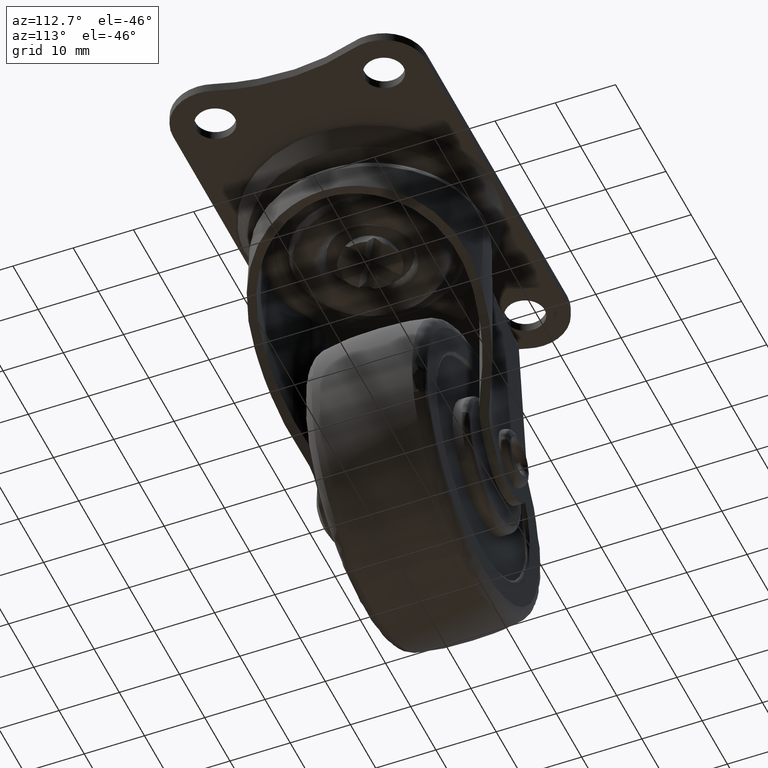
[diagram: clean part render]
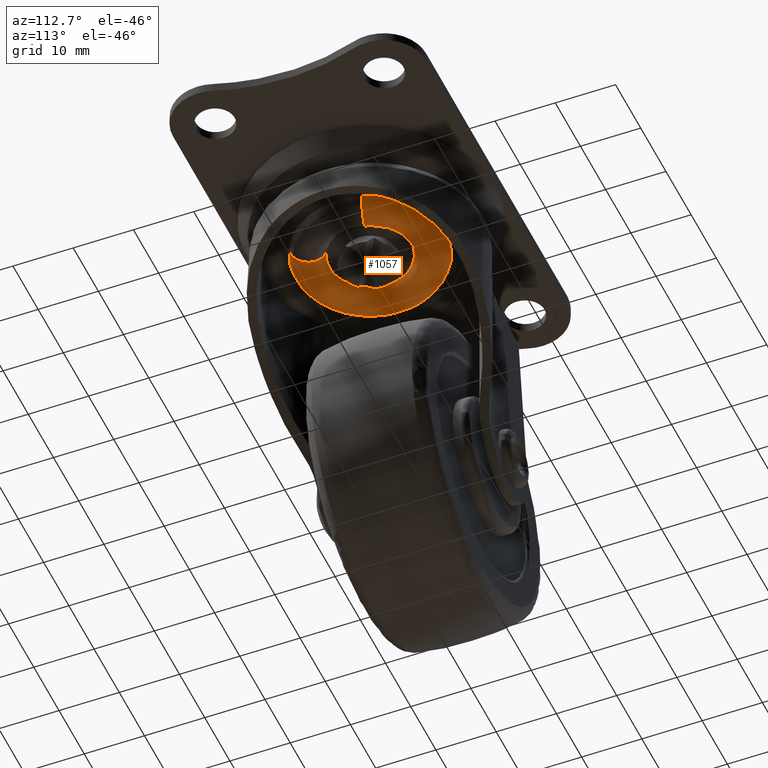
[diagram: same view with one face highlighted and labeled with its STEP entity id]
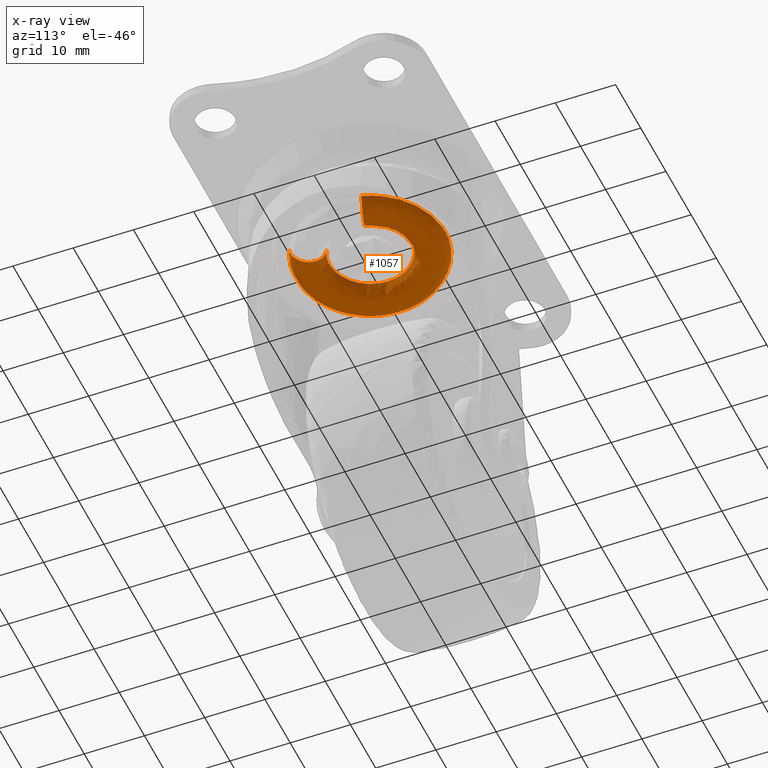
[diagram: x-ray of the same camera — body ghosted, the highlighted face saturated]
A machine part, auxiliary view. The second image highlights one B-rep face of the part: STEP entity #1057.
The next image is the same camera in x-ray: the body ghosted, the highlighted face saturated — about 0% of this face is hidden behind the body in this view.
In plain terms, the highlighted face is a freeform B-spline surface patch.
Its self-contained STEP definition (entity closure, byte-faithful):
#70=CARTESIAN_POINT('',(-6.750000000000000,0.0,-7.170965199999900));
#71=VERTEX_POINT('',#70);
#72=CARTESIAN_POINT('',(-6.024484720220784,3.044352781105745,-7.170965199999900));
#73=VERTEX_POINT('',#72);
#74=CARTESIAN_POINT('',(-6.750000000000000,0.0,-7.170965199999900));
#75=CARTESIAN_POINT('',(-6.750000000000000,1.608627018823631,-7.170965199999901));
#76=CARTESIAN_POINT('',(-6.024484720220783,3.044352781105745,-7.170965199999900));
#84=(BOUNDED_CURVE()B_SPLINE_CURVE(2,(#74,#75,#76),.UNSPECIFIED.,.F.,.U.)B_SPLINE_CURVE_WITH_KNOTS((3,3),(0.0,0.076687078001590),.UNSPECIFIED.)CURVE()GEOMETRIC_REPRESENTATION_ITEM()RATIONAL_B_SPLINE_CURVE((1.0,0.910155499530864,0.875430296785652))REPRESENTATION_ITEM(''));
#85=EDGE_CURVE('',#71,#73,#84,.T.);
#143=CARTESIAN_POINT('',(-1.460967394132283,6.589998048048444,-7.170965199999900));
#144=VERTEX_POINT('',#143);
#150=CARTESIAN_POINT('',(6.470022075837344,1.923880021773034,-7.170965199786359));
#151=VERTEX_POINT('',#150);
#152=CARTESIAN_POINT('',(-1.460967394132283,6.589998048048444,-7.170965199999900));
#153=CARTESIAN_POINT('',(-0.739245228913798,6.750000000000000,-7.170965199999900));
#154=CARTESIAN_POINT('',(0.0,6.750000000000000,-7.170965199999900));
#155=CARTESIAN_POINT('',(5.034961159431147,6.750000000000000,-7.170965199999901));
#156=CARTESIAN_POINT('',(6.470022075837344,1.923880021773034,-7.170965199786359));
#164=(BOUNDED_CURVE()B_SPLINE_CURVE(2,(#152,#153,#154,#155,#156),.UNSPECIFIED.,.F.,.U.)B_SPLINE_CURVE_WITH_KNOTS((3,2,3),(0.212959885327011,0.250000000000000,0.451473337930511),.UNSPECIFIED.)CURVE()GEOMETRIC_REPRESENTATION_ITEM()RATIONAL_B_SPLINE_CURVE((0.926068516297251,0.956604806352836,1.0,0.763959302193768,0.908365862583286))REPRESENTATION_ITEM(''));
#165=EDGE_CURVE('',#144,#151,#164,.T.);
#182=CARTESIAN_POINT('',(3.023612104225065,-6.034920864699359,-7.170965199785257));
#183=VERTEX_POINT('',#182);
#197=CARTESIAN_POINT('',(3.023612104225065,-6.034920864699359,-7.170965199785257));
#198=CARTESIAN_POINT('',(1.596363553568174,-6.750000000000000,-7.170965199999900));
#199=CARTESIAN_POINT('',(0.0,-6.750000000000000,-7.170965199999900));
#200=CARTESIAN_POINT('',(-6.750000000000000,-6.750000000000000,-7.170965199999900));
#201=CARTESIAN_POINT('',(-6.750000000000000,0.0,-7.170965199999900));
#209=(BOUNDED_CURVE()B_SPLINE_CURVE(2,(#197,#198,#199,#200,#201),.UNSPECIFIED.,.F.,.U.)B_SPLINE_CURVE_WITH_KNOTS((3,2,3),(0.673845389613934,0.750000000000000,1.0),.UNSPECIFIED.)CURVE()GEOMETRIC_REPRESENTATION_ITEM()RATIONAL_B_SPLINE_CURVE((0.875915174756569,0.910779324146163,1.0,0.707106781186548,1.0))REPRESENTATION_ITEM(''));
#210=EDGE_CURVE('',#183,#71,#209,.T.);
#229=CARTESIAN_POINT('',(-6.024484720220783,3.044352781105745,-7.170965199999900));
#230=CARTESIAN_POINT('',(-4.582461598003516,5.897979443529541,-7.170965199999901));
#231=CARTESIAN_POINT('',(-1.460967394132283,6.589998048048444,-7.170965199999900));
#239=(BOUNDED_CURVE()B_SPLINE_CURVE(2,(#229,#230,#231),.UNSPECIFIED.,.F.,.U.)B_SPLINE_CURVE_WITH_KNOTS((3,3),(0.076687078001590,0.212959885327011),.UNSPECIFIED.)CURVE()GEOMETRIC_REPRESENTATION_ITEM()RATIONAL_B_SPLINE_CURVE((0.875430296785652,0.813723670501934,0.926068516297251))REPRESENTATION_ITEM(''));
#240=EDGE_CURVE('',#73,#144,#239,.T.);
#880=CARTESIAN_POINT('',(5.598831349025277,-11.174885374365170,-7.246825856984107));
#881=CARTESIAN_POINT('',(4.616070541860282,-11.667267339049213,-7.246825856984108));
#882=CARTESIAN_POINT('',(3.562455472066828,-11.980562867184910,-7.246825856984108));
#883=CARTESIAN_POINT('',(-8.418107395118087,-15.543018339251747,-7.246825856984107));
#884=CARTESIAN_POINT('',(-11.980562867184910,-3.562455472066829,-7.246825856984108));
#885=CARTESIAN_POINT('',(-15.543018339251747,8.418107395118083,-7.246825856984107));
#886=CARTESIAN_POINT('',(-3.562455472066830,11.980562867184910,-7.246825856984108));
#887=CARTESIAN_POINT('',(8.418107395118081,15.543018339251747,-7.246825856984107));
#888=CARTESIAN_POINT('',(11.980562867184910,3.562455472066830,-7.246825856984108));
#889=CARTESIAN_POINT('',(5.568388830890055,-11.114124185206055,-9.821536517979027));
#890=CARTESIAN_POINT('',(4.590971587735059,-11.603828922098263,-9.821536517979029));
#891=CARTESIAN_POINT('',(3.543085337738135,-11.915420968881811,-9.821536517979027));
#892=CARTESIAN_POINT('',(-8.372335631143674,-15.458506306619945,-9.821536517979027));
#893=CARTESIAN_POINT('',(-11.915420968881811,-3.543085337738137,-9.821536517979027));
#894=CARTESIAN_POINT('',(-15.458506306619945,8.372335631143672,-9.821536517979027));
#895=CARTESIAN_POINT('',(-3.543085337738138,11.915420968881808,-9.821536517979027));
#896=CARTESIAN_POINT('',(8.372335631143672,15.458506306619945,-9.821536517979027));
#897=CARTESIAN_POINT('',(11.915420968881808,3.543085337738138,-9.821536517979027));
#898=CARTESIAN_POINT('',(4.418671040746265,-8.819365919275784,-10.035982690318157));
#899=CARTESIAN_POINT('',(3.643063338371664,-9.207960215604045,-10.035982690318161));
#900=CARTESIAN_POINT('',(2.811536523797995,-9.455217150323032,-10.035982690318161));
#901=CARTESIAN_POINT('',(-6.643680626525037,-12.266753674121025,-10.035982690318161));
#902=CARTESIAN_POINT('',(-9.455217150323032,-2.811536523797995,-10.035982690318161));
#903=CARTESIAN_POINT('',(-12.266753674121025,6.643680626525037,-10.035982690318161));
#904=CARTESIAN_POINT('',(-2.811536523797996,9.455217150323032,-10.035982690318161));
#905=CARTESIAN_POINT('',(6.643680626525037,12.266753674121025,-10.035982690318161));
#906=CARTESIAN_POINT('',(9.455217150323032,2.811536523797996,-10.035982690318161));
#907=CARTESIAN_POINT('',(3.268953250602475,-6.524607653345513,-10.250428862657296));
#908=CARTESIAN_POINT('',(2.695155089008268,-6.812091509109827,-10.250428862657296));
#909=CARTESIAN_POINT('',(2.079987709857853,-6.995013331764253,-10.250428862657296));
#910=CARTESIAN_POINT('',(-4.915025621906398,-9.075001041622105,-10.250428862657296));
#911=CARTESIAN_POINT('',(-6.995013331764253,-2.079987709857853,-10.250428862657296));
#912=CARTESIAN_POINT('',(-9.075001041622105,4.915025621906398,-10.250428862657296));
#913=CARTESIAN_POINT('',(-2.079987709857853,6.995013331764253,-10.250428862657296));
#914=CARTESIAN_POINT('',(4.915025621906398,9.075001041622105,-10.250428862657296));
#915=CARTESIAN_POINT('',(6.995013331764252,2.079987709857854,-10.250428862657296));
#916=CARTESIAN_POINT('',(3.047547479269479,-6.082696839886219,-7.722693122072946));
#917=CARTESIAN_POINT('',(2.512612591273266,-6.350709452120341,-7.722693122072945));
#918=CARTESIAN_POINT('',(1.939110417354707,-6.521242003918424,-7.722693122072945));
#919=CARTESIAN_POINT('',(-4.582131586563716,-8.460352421273131,-7.722693122072945));
#920=CARTESIAN_POINT('',(-6.521242003918424,-1.939110417354707,-7.722693122072945));
#921=CARTESIAN_POINT('',(-8.460352421273131,4.582131586563716,-7.722693122072945));
#922=CARTESIAN_POINT('',(-1.939110417354707,6.521242003918424,-7.722693122072945));
#923=CARTESIAN_POINT('',(4.582131586563716,8.460352421273131,-7.722693122072945));
#924=CARTESIAN_POINT('',(6.521242003918424,1.939110417354708,-7.722693122072945));
#925=CARTESIAN_POINT('',(3.004942172323770,-5.997659554106781,-7.236278714459069));
#926=CARTESIAN_POINT('',(2.477485778183381,-6.261925297854940,-7.236278714459069));
#927=CARTESIAN_POINT('',(1.912001276284714,-6.430073771385821,-7.236278714459070));
#928=CARTESIAN_POINT('',(-4.518072495101108,-8.342075047670534,-7.236278714459069));
#929=CARTESIAN_POINT('',(-6.430073771385821,-1.912001276284714,-7.236278714459070));
#930=CARTESIAN_POINT('',(-8.342075047670534,4.518072495101106,-7.236278714459069));
#931=CARTESIAN_POINT('',(-1.912001276284715,6.430073771385821,-7.236278714459070));
#932=CARTESIAN_POINT('',(4.518072495101106,8.342075047670534,-7.236278714459069));
#933=CARTESIAN_POINT('',(6.430073771385821,1.912001276284715,-7.236278714459070));
#934=CARTESIAN_POINT('',(3.037751382029543,-6.063144498165572,-6.746094253314972));
#935=CARTESIAN_POINT('',(2.504535999378363,-6.330295605327556,-6.746094253314973));
#936=CARTESIAN_POINT('',(1.932877302255895,-6.500279993898865,-6.746094253314973));
#937=CARTESIAN_POINT('',(-4.567402691642967,-8.433157296154759,-6.746094253314974));
#938=CARTESIAN_POINT('',(-6.500279993898865,-1.932877302255895,-6.746094253314973));
#939=CARTESIAN_POINT('',(-8.433157296154759,4.567402691642966,-6.746094253314974));
#940=CARTESIAN_POINT('',(-1.932877302255897,6.500279993898865,-6.746094253314973));
#941=CARTESIAN_POINT('',(4.567402691642966,8.433157296154759,-6.746094253314974));
#942=CARTESIAN_POINT('',(6.500279993898865,1.932877302255897,-6.746094253314973));
#950=(BOUNDED_SURFACE()B_SPLINE_SURFACE(2,2,((#880,#889,#898,#907,#916,#925,#934),(#881,#890,#899,#908,#917,#926,#935),(#882,#891,#900,#909,#918,#927,#936),(#883,#892,#901,#910,#919,#928,#937),(#884,#893,#902,#911,#920,#929,#938),(#885,#894,#903,#912,#921,#930,#939),(#886,#895,#904,#913,#922,#931,#940),(#887,#896,#905,#914,#923,#932,#941),(#888,#897,#906,#915,#924,#933,#942)),.UNSPECIFIED.,.F.,.F.,.U.)B_SPLINE_SURFACE_WITH_KNOTS((3,2,2,2,3),(3,2,2,3),(0.0,2.485079979789578,23.194099561029489,43.903119142269389,64.612138723509304),(0.0,4.397863636310470,8.795727272620940,9.861673902763874),.UNSPECIFIED.)GEOMETRIC_REPRESENTATION_ITEM()RATIONAL_B_SPLINE_SURFACE(((0.938141003135439,0.698750108348849,0.938141003135439,0.698750108348849,0.938141003135439,0.880117849466503,0.850221800336696),(0.964852847261355,0.718645735887565,0.964852847261355,0.718645735887565,0.964852847261355,0.905177590730142,0.874430306443075),(1.0,0.744824185291441,1.0,0.744824185291441,1.0,0.938150924567829,0.906283594358522),(0.707106781186548,0.526670232211323,0.707106781186548,0.526670232211323,0.707106781186548,0.663372880538341,0.640839275249030),(1.0,0.744824185291441,1.0,0.744824185291441,1.0,0.938150924567829,0.906283594358522),(0.707106781186548,0.526670232211323,0.707106781186548,0.526670232211323,0.707106781186548,0.663372880538341,0.640839275249030),(1.0,0.744824185291441,1.0,0.744824185291441,1.0,0.938150924567829,0.906283594358522),(0.707106781186548,0.526670232211323,0.707106781186548,0.526670232211323,0.707106781186548,0.663372880538341,0.640839275249030),(1.0,0.744824185291441,1.0,0.744824185291441,1.0,0.938150924567829,0.906283594358522)))REPRESENTATION_ITEM('')SURFACE());
#951=CARTESIAN_POINT('',(5.585070648709015,-11.147415153513119,-7.596891126183888));
#952=VERTEX_POINT('',#951);
#953=CARTESIAN_POINT('',(-12.468274890970640,0.0,-7.596891125925820));
#954=VERTEX_POINT('',#953);
#955=CARTESIAN_POINT('',(5.585070648709015,-11.147415153513121,-7.596891126183888));
#956=CARTESIAN_POINT('',(2.948725868374734,-12.468274890970639,-7.596891125925820));
#957=CARTESIAN_POINT('',(0.0,-12.468274890970640,-7.596891125925820));
#958=CARTESIAN_POINT('',(-12.468274890970639,-12.468274890970639,-7.596891125925820));
#959=CARTESIAN_POINT('',(-12.468274890970640,0.0,-7.596891125925820));
#967=(BOUNDED_CURVE()B_SPLINE_CURVE(2,(#955,#956,#957,#958,#959),.UNSPECIFIED.,.F.,.U.)B_SPLINE_CURVE_WITH_KNOTS((3,2,3),(0.673845389614928,0.750000000000000,1.0),.UNSPECIFIED.)CURVE()GEOMETRIC_REPRESENTATION_ITEM()RATIONAL_B_SPLINE_CURVE((0.875915174757480,0.910779324147327,1.0,0.707106781186547,1.0))REPRESENTATION_ITEM(''));
#968=EDGE_CURVE('',#952,#954,#967,.T.);
#969=ORIENTED_EDGE('',*,*,#968,.T.);
#970=CARTESIAN_POINT('',(-12.349345324491260,1.718007221563200,-7.596891125907440));
#971=VERTEX_POINT('',#970);
#972=CARTESIAN_POINT('',(-12.468274890970640,0.0,-7.596891125925820));
#973=CARTESIAN_POINT('',(-12.468274890970637,0.863120078281109,-7.596891125925821));
#974=CARTESIAN_POINT('',(-12.349345324491262,1.718007221563200,-7.596891125907440));
#982=(BOUNDED_CURVE()B_SPLINE_CURVE(2,(#972,#973,#974),.UNSPECIFIED.,.F.,.U.)B_SPLINE_CURVE_WITH_KNOTS((3,3),(0.0,0.023792609107007),.UNSPECIFIED.)CURVE()GEOMETRIC_REPRESENTATION_ITEM()RATIONAL_B_SPLINE_CURVE((1.0,0.972125224538714,0.949556158169396))REPRESENTATION_ITEM(''));
#983=EDGE_CURVE('',#954,#971,#982,.T.);
#984=ORIENTED_EDGE('',*,*,#983,.T.);
#985=CARTESIAN_POINT('',(1.008907745476289,12.427388459286020,-7.596891125907439));
#986=VERTEX_POINT('',#985);
#987=CARTESIAN_POINT('',(-12.349345324491262,1.718007221563200,-7.596891125907440));
#988=CARTESIAN_POINT('',(-10.853797422596752,12.468274890970639,-7.596891125925820));
#989=CARTESIAN_POINT('',(0.0,12.468274890970640,-7.596891125925820));
#990=CARTESIAN_POINT('',(0.505282343083121,12.468274890970642,-7.596891125925820));
#991=CARTESIAN_POINT('',(1.008907745476289,12.427388459286020,-7.596891125907439));
#999=(BOUNDED_CURVE()B_SPLINE_CURVE(2,(#987,#988,#989,#990,#991),.UNSPECIFIED.,.F.,.U.)B_SPLINE_CURVE_WITH_KNOTS((3,2,3),(0.023792609107007,0.250000000000000,0.264091366876144),.UNSPECIFIED.)CURVE()GEOMETRIC_REPRESENTATION_ITEM()RATIONAL_B_SPLINE_CURVE((0.949556158169396,0.734981556647833,1.0,0.983490936792659,0.968842955716807))REPRESENTATION_ITEM(''));
#1000=EDGE_CURVE('',#971,#986,#999,.T.);
#1001=ORIENTED_EDGE('',*,*,#1000,.T.);
#1002=CARTESIAN_POINT('',(11.951113154410679,3.553698513700326,-7.596891126194878));
#1003=VERTEX_POINT('',#1002);
#1004=CARTESIAN_POINT('',(1.008907745476289,12.427388459286027,-7.596891125907439));
#1005=CARTESIAN_POINT('',(9.517905753445739,11.736592156857556,-7.596891125925820));
#1006=CARTESIAN_POINT('',(11.951113154410681,3.553698513700326,-7.596891126194878));
#1014=(BOUNDED_CURVE()B_SPLINE_CURVE(2,(#1004,#1005,#1006),.UNSPECIFIED.,.F.,.U.)B_SPLINE_CURVE_WITH_KNOTS((3,3),(0.264091366876144,0.451473337935122),.UNSPECIFIED.)CURVE()GEOMETRIC_REPRESENTATION_ITEM()RATIONAL_B_SPLINE_CURVE((0.968842955716807,0.774059327545545,0.908365862589895))REPRESENTATION_ITEM(''));
#1015=EDGE_CURVE('',#986,#1003,#1014,.T.);
#1016=ORIENTED_EDGE('',*,*,#1015,.T.);
#1017=CARTESIAN_POINT('',(11.951113154410685,3.553698513700326,-7.596891126194878));
#1018=CARTESIAN_POINT('',(11.628085170223486,3.457645196102155,-9.846582435611323));
#1019=CARTESIAN_POINT('',(9.455217150323032,2.811536523797995,-10.035982690318161));
#1020=CARTESIAN_POINT('',(6.995013331764253,2.079987709857852,-10.250428862657296));
#1021=CARTESIAN_POINT('',(6.521242003918424,1.939110417354706,-7.722693122072945));
#1022=CARTESIAN_POINT('',(6.470022075827636,1.923880021660553,-7.449416890997648));
#1023=CARTESIAN_POINT('',(6.470022075837344,1.923880021773034,-7.170965199786359));
#1031=(BOUNDED_CURVE()B_SPLINE_CURVE(2,(#1017,#1018,#1019,#1020,#1021,#1022,#1023),.UNSPECIFIED.,.F.,.U.)B_SPLINE_CURVE_WITH_KNOTS((3,2,2,3),(-5.820674342607941,-4.0,-2.0,-1.720068710227337),.UNSPECIFIED.)CURVE()GEOMETRIC_REPRESENTATION_ITEM()RATIONAL_B_SPLINE_CURVE((0.958343361827788,0.767703970653024,1.0,0.744824185291441,1.0,0.964284152534922,0.938566288316066))REPRESENTATION_ITEM(''));
#1032=EDGE_CURVE('',#1003,#151,#1031,.T.);
#1033=ORIENTED_EDGE('',*,*,#1032,.T.);
#1034=ORIENTED_EDGE('',*,*,#165,.F.);
#1035=ORIENTED_EDGE('',*,*,#240,.F.);
#1036=ORIENTED_EDGE('',*,*,#85,.F.);
#1037=ORIENTED_EDGE('',*,*,#210,.F.);
#1038=CARTESIAN_POINT('',(5.585070648709015,-11.147415153513121,-7.596891126183887));
#1039=CARTESIAN_POINT('',(5.434111144786329,-10.846110413168654,-9.846582435609820));
#1040=CARTESIAN_POINT('',(4.418672562223884,-8.819365156986226,-10.035982690318161));
#1041=CARTESIAN_POINT('',(3.268954376198647,-6.524607089400178,-10.250428862657296));
#1042=CARTESIAN_POINT('',(3.047548528629169,-6.082696314136824,-7.722693122072944));
#1043=CARTESIAN_POINT('',(3.023612104187873,-6.034920864671486,-7.449416890996552));
#1044=CARTESIAN_POINT('',(3.023612104225065,-6.034920864699359,-7.170965199785256));
#1052=(BOUNDED_CURVE()B_SPLINE_CURVE(2,(#1038,#1039,#1040,#1041,#1042,#1043,#1044),.UNSPECIFIED.,.F.,.U.)B_SPLINE_CURVE_WITH_KNOTS((3,2,2,3),(-5.820674342619042,-4.0,-2.0,-1.720068710226253),.UNSPECIFIED.)CURVE()GEOMETRIC_REPRESENTATION_ITEM()RATIONAL_B_SPLINE_CURVE((0.899061153989009,0.720214534024532,0.938140952186599,0.698750070400920,0.938140952186599,0.904634453037429,0.880507471410889))REPRESENTATION_ITEM(''));
#1053=EDGE_CURVE('',#952,#183,#1052,.T.);
#1054=ORIENTED_EDGE('',*,*,#1053,.F.);
#1055=EDGE_LOOP('',(#969,#984,#1001,#1016,#1033,#1034,#1035,#1036,#1037,#1054));
#1056=FACE_OUTER_BOUND('',#1055,.T.);
#1057=ADVANCED_FACE('',(#1056),#950,.T.);